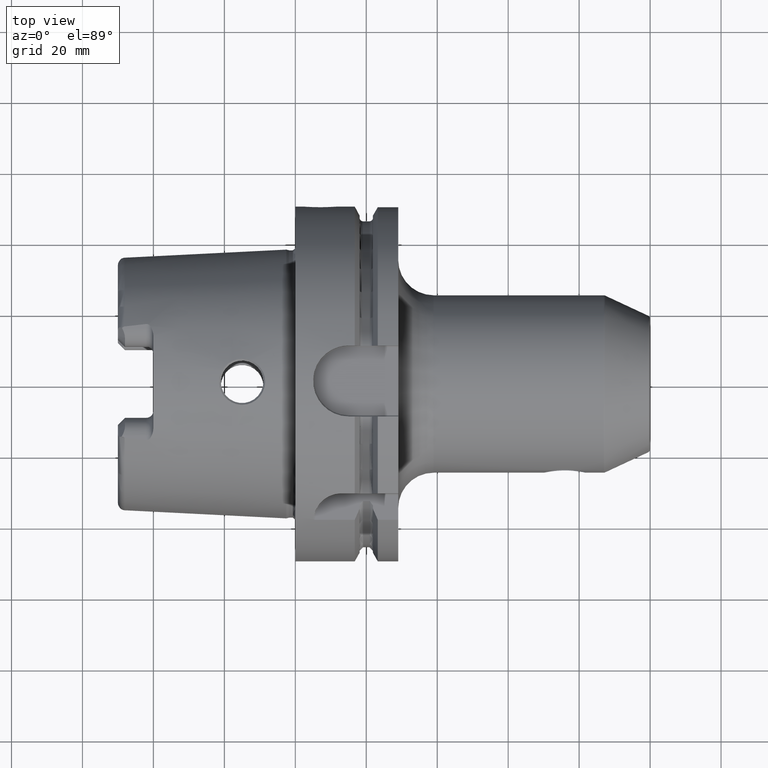
[diagram: clean part render]
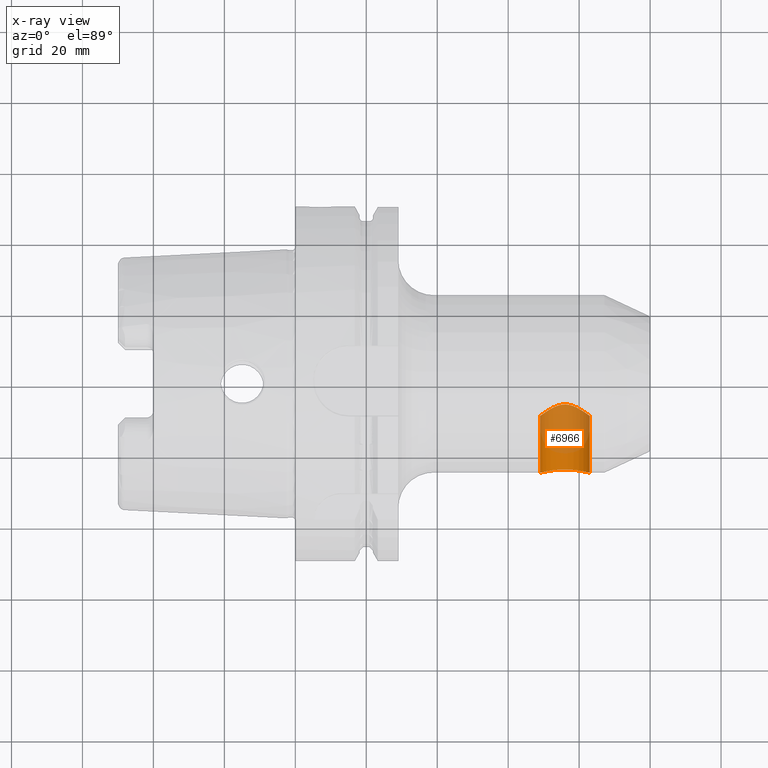
[diagram: x-ray — body ghosted, one internal face saturated and labeled with its STEP entity id]
A machine part, top view, then the same camera in x-ray: the body is ghosted and one INTERNAL B-rep face — a face not visible from any outside direction — is saturated and labeled: STEP entity #6966.
In plain terms, the highlighted cylindrical surface (edge-blend (fillet) strip) has radius 7 mm, axis along (0, -1, 0).
Its self-contained STEP definition (entity closure, byte-faithful):
#6811=CARTESIAN_POINT('',(8.3E1,-2.500001749829E1,0.E0));
#6812=CARTESIAN_POINT('',(8.3E1,-2.500001749829E1,-2.671758797401E-1));
#6813=CARTESIAN_POINT('',(8.296943471965E1,-2.499140638341E1,
-8.026028332696E-1));
#6814=CARTESIAN_POINT('',(8.283067233612E1,-2.495292034293E1,
-1.599842586466E0));
#6815=CARTESIAN_POINT('',(8.260121826105E1,-2.489081808782E1,
-2.375842515205E0));
#6816=CARTESIAN_POINT('',(8.227968485234E1,-2.480712571365E1,
-3.128673371815E0));
#6817=CARTESIAN_POINT('',(8.187261673823E1,-2.470675758775E1,
-3.839075561318E0));
#6818=CARTESIAN_POINT('',(8.137894030021E1,-2.459356966788E1,
-4.505051006655E0));
#6819=CARTESIAN_POINT('',(8.081211125886E1,-2.447529706665E1,
-5.106040647745E0));
#6820=CARTESIAN_POINT('',(8.017583442455E1,-2.435763553786E1,
-5.638326889717E0));
#6821=CARTESIAN_POINT('',(7.948579964812E1,-2.424840270398E1,
-6.088800900904E0));
#6822=CARTESIAN_POINT('',(7.875251933366E1,-2.415346730708E1,
-6.453393965023E0));
#6823=CARTESIAN_POINT('',(7.798565377328E1,-2.407785659E1,-6.728687732981E0));
#6824=CARTESIAN_POINT('',(7.720120892663E1,-2.402566998739E1,
-6.911837908631E0));
#6825=CARTESIAN_POINT('',(7.639982050591E1,-2.399886752944E1,
-7.003900728021E0));
#6826=CARTESIAN_POINT('',(7.560012439870E1,-2.399886876184E1,
-7.003896457581E0));
#6827=CARTESIAN_POINT('',(7.479875558003E1,-2.402567147398E1,
-6.911832915402E0));
#6828=CARTESIAN_POINT('',(7.401427123911E1,-2.407786297909E1,
-6.728664702039E0));
#6829=CARTESIAN_POINT('',(7.324745953209E1,-2.415346962269E1,
-6.453385768080E0));
#6830=CARTESIAN_POINT('',(7.251411618834E1,-2.424841476310E1,
-6.088752751762E0));
#6831=CARTESIAN_POINT('',(7.182414704438E1,-2.435763896644E1,
-5.638312179010E0));
#6832=CARTESIAN_POINT('',(7.118783135845E1,-2.447530818614E1,
-5.105987865943E0));
#6833=CARTESIAN_POINT('',(7.062103603752E1,-2.459357505679E1,
-4.505020801750E0));
#6834=CARTESIAN_POINT('',(7.012735284643E1,-2.470676472723E1,
-3.839031293027E0));
#6835=CARTESIAN_POINT('',(6.972028822555E1,-2.480713261137E1,
-3.128617303938E0));
#6836=CARTESIAN_POINT('',(6.939877173071E1,-2.489082076974E1,
-2.375813773532E0));
#6837=CARTESIAN_POINT('',(6.916931914829E1,-2.495292268927E1,
-1.599804072894E0));
#6838=CARTESIAN_POINT('',(6.903056644385E1,-2.499140603749E1,
-8.026024317928E-1));
#6839=CARTESIAN_POINT('',(6.9E1,-2.500001756561E1,-2.671767951057E-1));
#6840=CARTESIAN_POINT('',(6.9E1,-2.500001756561E1,0.E0));
#6842=CARTESIAN_POINT('',(6.9E1,-9.E0,0.E0));
#6843=CARTESIAN_POINT('',(6.9E1,-9.E0,-2.387923361208E-1));
#6844=CARTESIAN_POINT('',(6.902443873886E1,-8.980971205091E0,
-7.189913254934E-1));
#6845=CARTESIAN_POINT('',(6.913660961574E1,-8.894002275699E0,
-1.439371116526E0));
#6846=CARTESIAN_POINT('',(6.932493817709E1,-8.749248159020E0,
-2.151734140603E0));
#6847=CARTESIAN_POINT('',(6.959734332555E1,-8.542817500625E0,
-2.864746340814E0));
#6848=CARTESIAN_POINT('',(6.995934264197E1,-8.274293962540E0,
-3.567499600057E0));
#6849=CARTESIAN_POINT('',(7.041814363133E1,-7.944438773881E0,
-4.251795205251E0));
#6850=CARTESIAN_POINT('',(7.097278728248E1,-7.563555158290E0,
-4.895973970054E0));
#6851=CARTESIAN_POINT('',(7.160402639114E1,-7.157799498249E0,
-5.469455827197E0));
#6852=CARTESIAN_POINT('',(7.228765251552E1,-6.757828424799E0,
-5.953496161802E0));
#6853=CARTESIAN_POINT('',(7.299766561952E1,-6.393642537754E0,
-6.340146331771E0));
#6854=CARTESIAN_POINT('',(7.372015815706E1,-6.087062233877E0,
-6.632526147270E0));
#6855=CARTESIAN_POINT('',(7.441094911583E1,-5.863910496596E0,
-6.828807785164E0));
#6856=CARTESIAN_POINT('',(7.506608829534E1,-5.721783279131E0,
-6.947424841577E0));
#6857=CARTESIAN_POINT('',(7.569405756484E1,-5.653957598376E0,
-7.002351701232E0));
#6858=CARTESIAN_POINT('',(7.630625807647E1,-5.653970116453E0,
-7.002341742745E0));
#6859=CARTESIAN_POINT('',(7.693440033841E1,-5.721858362370E0,
-6.947363467947E0));
#6860=CARTESIAN_POINT('',(7.758963976084E1,-5.864065666942E0,
-6.828676353786E0));
#6861=CARTESIAN_POINT('',(7.828057187793E1,-6.087336584652E0,
-6.632276682274E0));
#6862=CARTESIAN_POINT('',(7.900287936831E1,-6.393908590150E0,
-6.339875271278E0));
#6863=CARTESIAN_POINT('',(7.971258552611E1,-6.757964980837E0,
-5.953336312867E0));
#6864=CARTESIAN_POINT('',(8.039606684257E1,-7.157859103300E0,
-5.469373002447E0));
#6865=CARTESIAN_POINT('',(8.102717246218E1,-7.563529950400E0,
-4.896006063213E0));
#6866=CARTESIAN_POINT('',(8.158176179653E1,-7.944372301071E0,
-4.251916346173E0));
#6867=CARTESIAN_POINT('',(8.204058303016E1,-8.274239386398E0,
-3.567629148370E0));
#6868=CARTESIAN_POINT('',(8.240261759727E1,-8.542788107657E0,
-2.864835392045E0));
#6869=CARTESIAN_POINT('',(8.267502720980E1,-8.749221731499E0,
-2.151840174113E0));
#6870=CARTESIAN_POINT('',(8.286337305031E1,-8.893988849251E0,
-1.439461117866E0));
#6871=CARTESIAN_POINT('',(8.297555860334E1,-8.980969134477E0,
-7.190331380680E-1));
#6872=CARTESIAN_POINT('',(8.3E1,-9.E0,-2.388067343746E-1));
#6873=CARTESIAN_POINT('',(8.3E1,-9.E0,0.E0));
#6906=DIRECTION('',(0.E0,1.E0,0.E0));
#6907=VECTOR('',#6906,1.600001749829E1);
#6908=CARTESIAN_POINT('',(8.3E1,-2.500001749829E1,0.E0));
#6909=LINE('',#6908,#6907);
#6943=DIRECTION('',(0.E0,1.E0,0.E0));
#6944=VECTOR('',#6943,1.600001756561E1);
#6945=CARTESIAN_POINT('',(6.9E1,-2.500001756561E1,0.E0));
#6946=LINE('',#6945,#6944);
#6947=VERTEX_POINT('',#6840);
#6948=VERTEX_POINT('',#6811);
#6949=VERTEX_POINT('',#6873);
#6950=VERTEX_POINT('',#6842);
#6951=CARTESIAN_POINT('',(7.6E1,3.985421899874E0,0.E0));
#6952=DIRECTION('',(0.E0,-1.E0,0.E0));
#6953=DIRECTION('',(-1.E0,0.E0,0.E0));
#6954=AXIS2_PLACEMENT_3D('',#6951,#6952,#6953);
#6955=CYLINDRICAL_SURFACE('',#6954,7.E0);
#6957=ORIENTED_EDGE('',*,*,#6956,.T.);
#6959=ORIENTED_EDGE('',*,*,#6958,.T.);
#6961=ORIENTED_EDGE('',*,*,#6960,.T.);
#6963=ORIENTED_EDGE('',*,*,#6962,.F.);
#6964=EDGE_LOOP('',(#6957,#6959,#6961,#6963));
#6965=FACE_OUTER_BOUND('',#6964,.F.);
#6966=ADVANCED_FACE('',(#6965),#6955,.F.);
#6841=B_SPLINE_CURVE_WITH_KNOTS('',3,(#6811,#6812,#6813,#6814,#6815,#6816,#6817,
#6818,#6819,#6820,#6821,#6822,#6823,#6824,#6825,#6826,#6827,#6828,#6829,#6830,
#6831,#6832,#6833,#6834,#6835,#6836,#6837,#6838,#6839,#6840),.UNSPECIFIED.,.F.,
.F.,(4,1,1,1,1,1,1,1,1,1,1,1,1,1,1,1,1,1,1,1,1,1,1,1,1,1,1,4),(0.E0,
3.703703703704E-2,7.407407407407E-2,1.111111111111E-1,1.481481481481E-1,
1.851851851852E-1,2.222222222222E-1,2.592592592593E-1,2.962962962963E-1,
3.333333333333E-1,3.703703703704E-1,4.074074074074E-1,4.444444444444E-1,
4.814814814815E-1,5.185185185185E-1,5.555555555556E-1,5.925925925926E-1,
6.296296296296E-1,6.666666666667E-1,7.037037037037E-1,7.407407407407E-1,
7.777777777778E-1,8.148148148148E-1,8.518518518519E-1,8.888888888889E-1,
9.259259259259E-1,9.629629629630E-1,1.E0),.UNSPECIFIED.);
#6874=B_SPLINE_CURVE_WITH_KNOTS('',3,(#6842,#6843,#6844,#6845,#6846,#6847,#6848,
#6849,#6850,#6851,#6852,#6853,#6854,#6855,#6856,#6857,#6858,#6859,#6860,#6861,
#6862,#6863,#6864,#6865,#6866,#6867,#6868,#6869,#6870,#6871,#6872,#6873),
.UNSPECIFIED.,.F.,.F.,(4,1,1,1,1,1,1,1,1,1,1,1,1,1,1,1,1,1,1,1,1,1,1,1,1,1,1,1,
1,4),(0.E0,3.448275862069E-2,6.896551724138E-2,1.034482758621E-1,
1.379310344828E-1,1.724137931034E-1,2.068965517241E-1,2.413793103448E-1,
2.758620689655E-1,3.103448275862E-1,3.448275862069E-1,3.793103448276E-1,
4.137931034483E-1,4.482758620690E-1,4.827586206897E-1,5.172413793103E-1,
5.517241379310E-1,5.862068965517E-1,6.206896551724E-1,6.551724137931E-1,
6.896551724138E-1,7.241379310345E-1,7.586206896552E-1,7.931034482759E-1,
8.275862068966E-1,8.620689655172E-1,8.965517241379E-1,9.310344827586E-1,
9.655172413793E-1,1.E0),.UNSPECIFIED.);
#6956=EDGE_CURVE('',#6948,#6947,#6841,.T.);
#6958=EDGE_CURVE('',#6947,#6950,#6946,.T.);
#6960=EDGE_CURVE('',#6950,#6949,#6874,.T.);
#6962=EDGE_CURVE('',#6948,#6949,#6909,.T.);